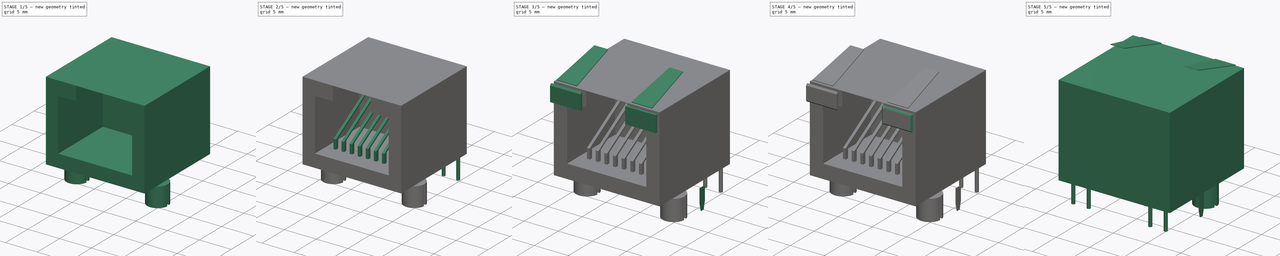
[diagram: build sequence overview — one tinted view per stage of 5, left to right]
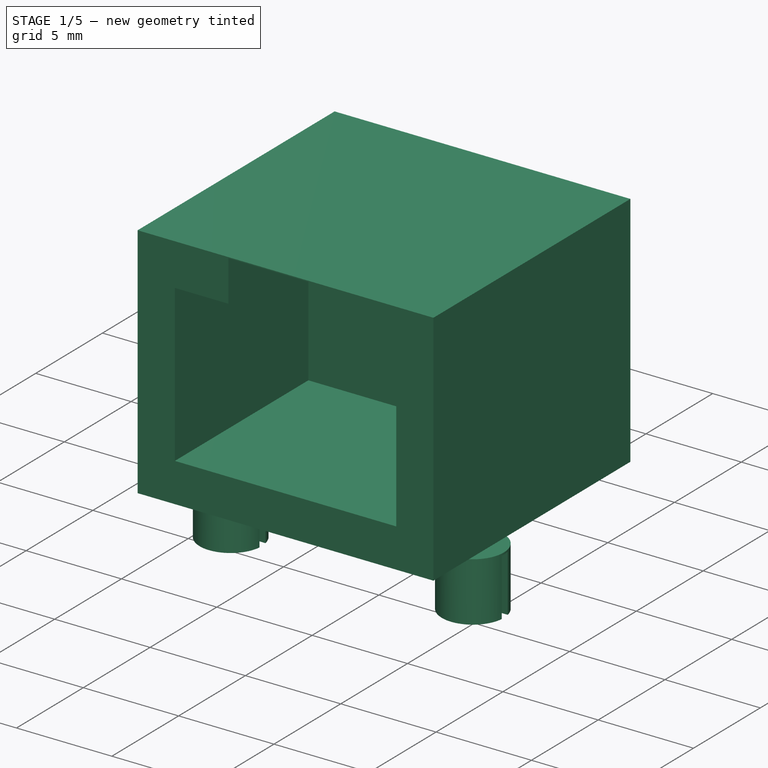
[diagram: stage 1 of 5 — iso view after this stage's code; geometry added in this stage tinted green]
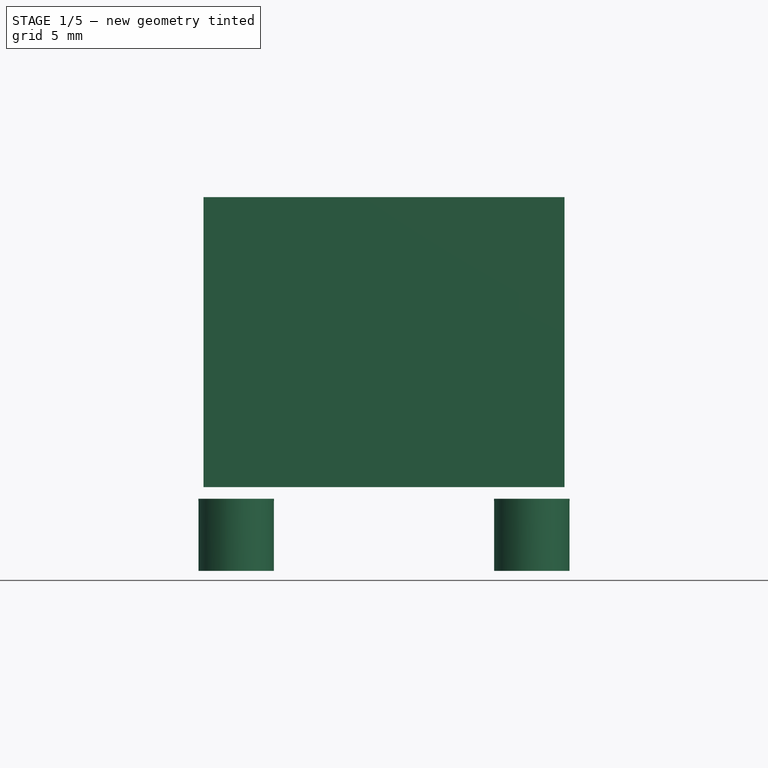
[diagram: stage 1 of 5 — front view after this stage's code; geometry added in this stage tinted green]
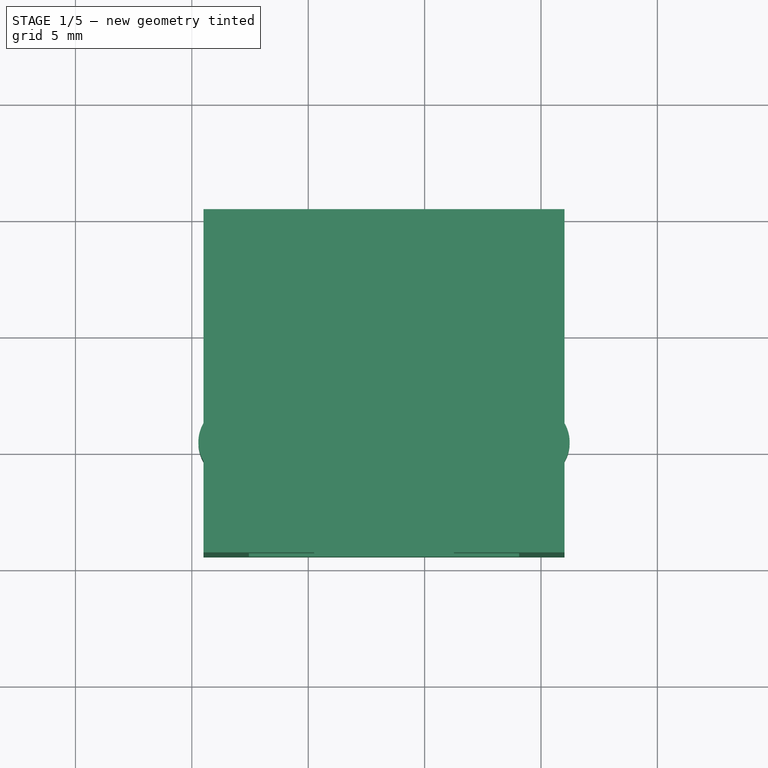
[diagram: stage 1 of 5 — top view after this stage's code; geometry added in this stage tinted green]
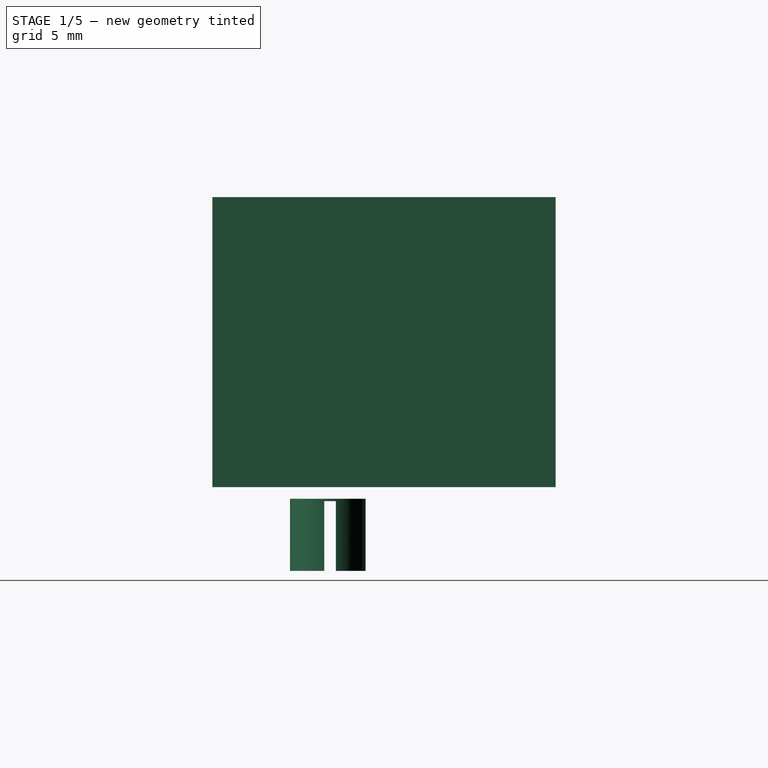
[diagram: stage 1 of 5 — right view after this stage's code; geometry added in this stage tinted green]
FCSTD DOCUMENT  (FreeCAD 0.15R4671 (Git))
Label: RJ45_Amphenol_RJHSE538X
License: All rights reserved
LicenseURL: http://en.wikipedia.org/wiki/All_rights_reserved
objects: Sketcher::SketchObject×12, PartDesign::Pad×9, PartDesign::Chamfer×8, Part::FeaturePython×4, PartDesign::Pocket×3, Part::MultiFuse×1
note: 49 computed .brp shape members not serialized (recipe doc carries the construction recipe); baked Part::Feature solids carry a one-line shape summary decoded from their .brp

FEATURE [Sketcher::SketchObject] Sketch004
  sketch-geometry (2):
    g0: Circle CenterX=1.905 CenterY=5.46 CenterZ=0 NormalX=0 NormalY=0 NormalZ=1 Radius=1.625
    g1: Circle CenterX=14.605 CenterY=5.46 CenterZ=0 NormalX=0 NormalY=0 NormalZ=1 Radius=1.625
  constraints (6):
    c: Radius(g0) = 1.625
    c: DistanceY(g-1,g0) = 5.46
    c: DistanceX(g-2,g0) = 1.905
    c: Radius(g1) = 1.625
    c: DistanceY(g-1,g1) = 5.46
    c: Distance(g0,g1) = 12.7
FEATURE [PartDesign::Pad] Pad003
  Length = 3.1
  Length2 = 100
  Reversed = true
  Sketch = -> Sketch004
  Type = 0
FEATURE [Sketcher::SketchObject] Sketch009
  Placement = pos=(0,0,0.5) rot=(0,0,1;0rad)
  sketch-geometry (4):
    g0: LineSegment StartX=0.5 StartY=0.5 StartZ=0 EndX=16.01 EndY=0.5 EndZ=0
    g1: LineSegment StartX=16.01 StartY=0.5 StartZ=0 EndX=16.01 EndY=15.25 EndZ=0
    g2: LineSegment StartX=16.01 StartY=15.25 StartZ=0 EndX=0.5 EndY=15.25 EndZ=0
    g3: LineSegment StartX=0.5 StartY=15.25 StartZ=0 EndX=0.5 EndY=0.5 EndZ=0
  constraints (12):
    c: Coincident(g0,g1)
    c: Coincident(g1,g2)
    c: Coincident(g2,g3)
    c: Coincident(g3,g0)
    c: Horizontal(g0)
    c: Horizontal(g2)
    c: Vertical(g1)
    c: Vertical(g3)
    c: Distance(g3) = 14.75
    c: DistanceX(g-2,g0) = 0.5
    c: DistanceY(g-1,g0) = 0.5
    c: Distance(g2) = 15.51
FEATURE [PartDesign::Pad] Pad008
  Length = 12.46
  Length2 = 100
  Placement = pos=(0,0,0.5) rot=(0,0,1;0rad)
  Sketch = -> Sketch009
  Type = 0
FEATURE [Sketcher::SketchObject] Sketch010
  Placement = pos=(0,0.5,0.5) rot=(1,0,0;1.5708rad)
  Support = -> Pad008 [Face1]
  sketch-geometry (8):
    g0: LineSegment StartX=2.45 StartY=2.05 StartZ=0 EndX=2.45 EndY=10.25 EndZ=0
    g1: LineSegment StartX=2.45 StartY=10.25 StartZ=0 EndX=5.255 EndY=10.25 EndZ=0
    g2: LineSegment StartX=5.255 StartY=10.25 StartZ=0 EndX=5.255 EndY=12.41 EndZ=0
    g3: LineSegment StartX=5.255 StartY=12.41 StartZ=0 EndX=11.255 EndY=12.41 EndZ=0
    g4: LineSegment StartX=11.255 StartY=12.41 StartZ=0 EndX=11.255 EndY=10.25 EndZ=0
    g5: LineSegment StartX=11.255 StartY=10.25 StartZ=0 EndX=14.06 EndY=10.25 EndZ=0
    g6: LineSegment StartX=14.06 StartY=10.25 StartZ=0 EndX=14.06 EndY=2.05 EndZ=0
    g7: LineSegment StartX=14.06 StartY=2.05 StartZ=0 EndX=2.45 EndY=2.05 EndZ=0
  constraints (25):
    c: Vertical(g0)
    c: Coincident(g0,g1)
    c: Horizontal(g1)
    c: Coincident(g1,g2)
    c: Vertical(g2)
    c: Coincident(g2,g3)
    c: Horizontal(g3)
    c: Coincident(g3,g4)
    c: Coincident(g4,g5)
    c: Horizontal(g5)
    c: Coincident(g5,g6)
    c: Vertical(g6)
    c: Coincident(g6,g7)
    c: Coincident(g7,g0)
    c: Horizontal(g7)
    c: Equal(g1,g5)
    c: Parallel(g4,g2)
    c: Distance(g7) = 11.61
    c: DistanceX(g-2,g0) = 2.45
    c: Distance(g6) = 8.2
    c: Equal(g0,g6)
    c: Equal(g2,g4)
    c: Distance(g2) = 2.16
    c: DistanceY(g-1,g6) = 2.05
    c: Distance(g3) = 6
FEATURE [PartDesign::Pocket] Pocket001
  Length = 10
  Placement = pos=(0,0,0.5) rot=(0,0,1;0rad)
  Sketch = -> Sketch010
  Type = 0
FEATURE [Sketcher::SketchObject] Sketch011
  Placement = pos=(0,0,-3.1) rot=(1,0,0;3.14159rad)
  Support = -> Pad003 [Face3]
  sketch-geometry (4):
    g0: LineSegment StartX=0 StartY=-5.31 StartZ=0 EndX=17 EndY=-5.31 EndZ=0
    g1: LineSegment StartX=17 StartY=-5.31 StartZ=0 EndX=17 EndY=-5.81 EndZ=0
    g2: LineSegment StartX=17 StartY=-5.81 StartZ=0 EndX=0 EndY=-5.81 EndZ=0
    g3: LineSegment StartX=0 StartY=-5.81 StartZ=0 EndX=0 EndY=-5.31 EndZ=0
  constraints (12):
    c: Coincident(g0,g1)
    c: Coincident(g1,g2)
    c: Coincident(g2,g3)
    c: Coincident(g3,g0)
    c: Horizontal(g0)
    c: Horizontal(g2)
    c: Vertical(g1)
    c: Vertical(g3)
    c: PointOnObject(g0,g-2)
    c: Distance(g0) = 17
    c: Distance(g3) = 0.5
    c: DistanceY(g-1,g2) = -5.81
FEATURE [PartDesign::Pocket] Pocket002
  Length = 3
  Sketch = -> Sketch011
  Type = 0
FEATURE [Part::FeaturePython] Array003  # Draft array (typed FeaturePython)
  Angle = 360
  ArrayType = 0
  Axis = (0,0,1)
  Base = -> Pocket002
  Center = (0,0,0)
  Fuse = false
  IntervalAxis = (0,0,0)
  IntervalX = (12.7,0,0)
  IntervalY = (0,1,0)
  IntervalZ = (0,0,0)
  NumberPolar = 1
  NumberX = 2
  NumberY = 1
  NumberZ = 1
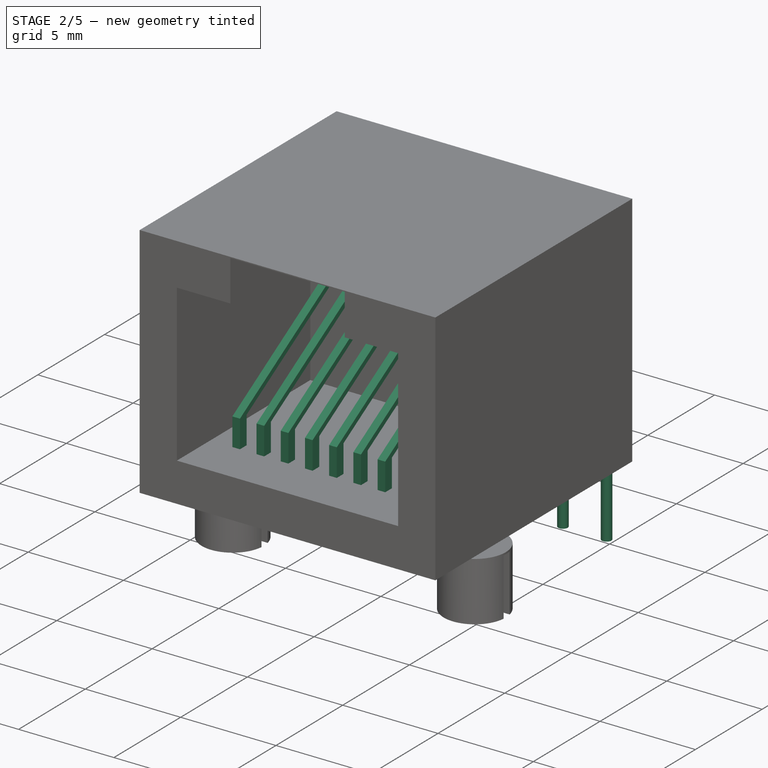
[diagram: stage 2 of 5 — iso view after this stage's code; geometry added in this stage tinted green]
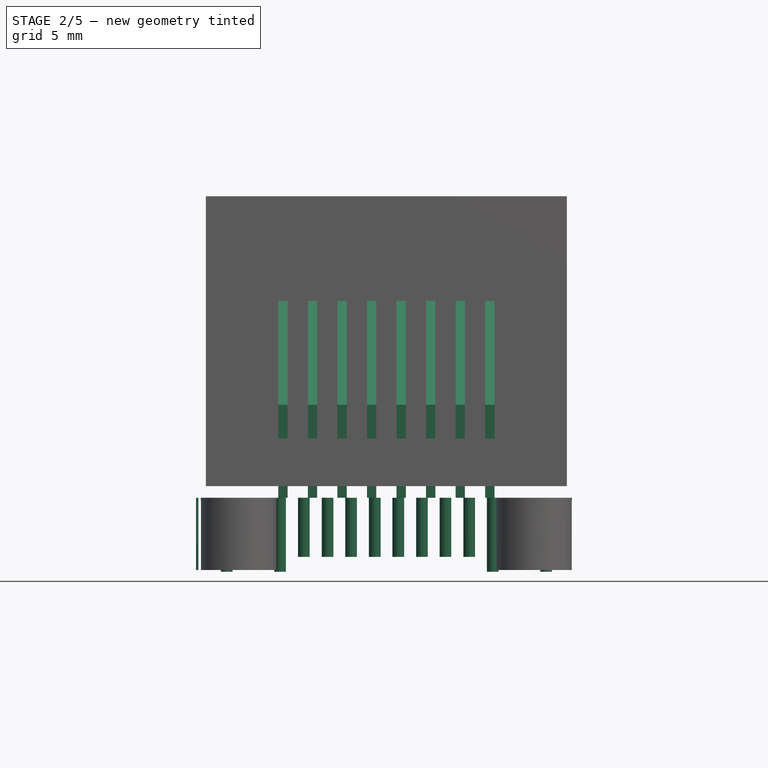
[diagram: stage 2 of 5 — front view after this stage's code; geometry added in this stage tinted green]
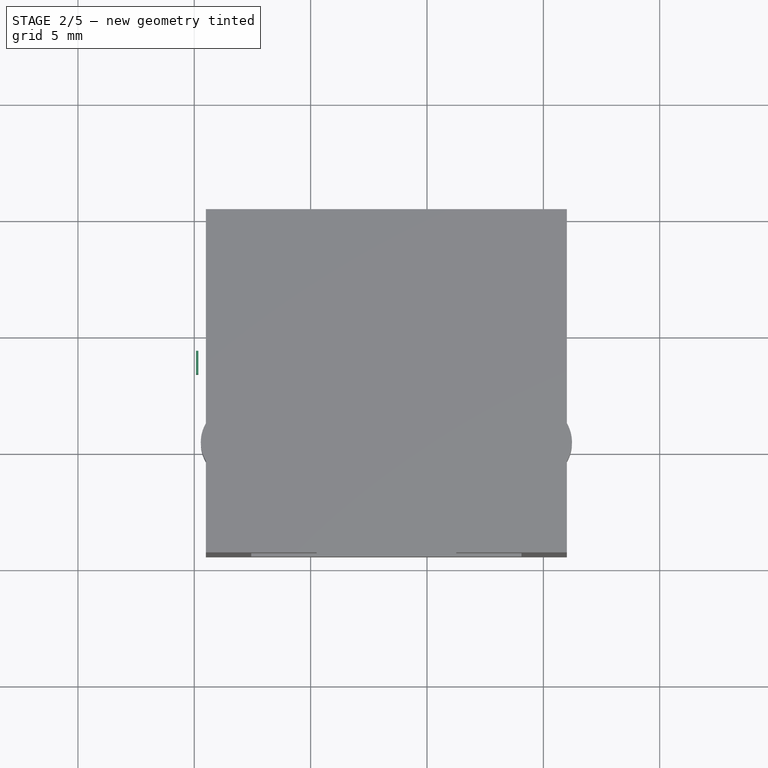
[diagram: stage 2 of 5 — top view after this stage's code; geometry added in this stage tinted green]
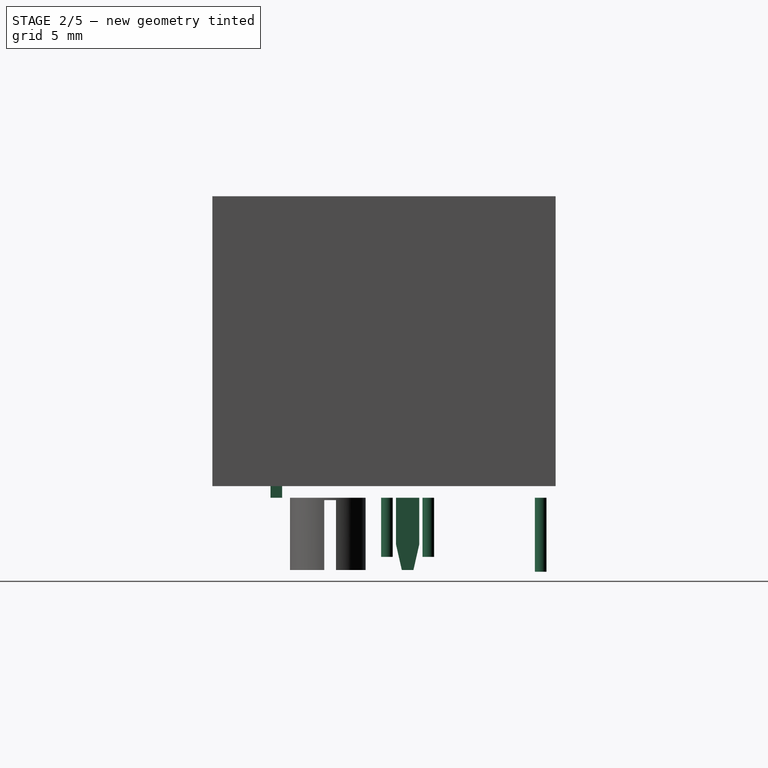
[diagram: stage 2 of 5 — right view after this stage's code; geometry added in this stage tinted green]
FEATURE [Sketcher::SketchObject] Sketch005
  Placement = pos=(0.125,0,0) rot=(0.57735,0.57735,0.57735;2.0944rad)
  sketch-geometry (7):
    g0: LineSegment StartX=8.39 StartY=-2 StartZ=0 EndX=8.64 EndY=-3.1 EndZ=0
    g1: LineSegment StartX=8.64 StartY=-3.1 StartZ=0 EndX=9.14 EndY=-3.1 EndZ=0
    g2: LineSegment StartX=9.14 StartY=-3.1 StartZ=0 EndX=9.39 EndY=-2 EndZ=0
    g3: LineSegment StartX=9.39 StartY=-2 StartZ=0 EndX=9.39 EndY=0 EndZ=0
    g4: LineSegment StartX=9.39 StartY=0 StartZ=0 EndX=8.39 EndY=0 EndZ=0
    g5: LineSegment StartX=8.39 StartY=-2 StartZ=0 EndX=8.39 EndY=0 EndZ=0
    g6: LineSegment [constr] StartX=8.39 StartY=-2 StartZ=0 EndX=8.39 EndY=-7.22902 EndZ=0
  constraints (20):
    c: Coincident(g0,g1)
    c: Horizontal(g1)
    c: Coincident(g1,g2)
    c: Coincident(g2,g3)
    c: PointOnObject(g3,g-1)
    c: Vertical(g3)
    c: Coincident(g4,g3)
    c: Horizontal(g4)
    c: Distance(g4) = 1
    c: Distance(g1) = 0.5
    c: Equal(g0,g2)
    c: Coincident(g5,g0)
    c: Coincident(g5,g4)
    c: Parallel(g5,g3)
    c: Coincident(g6,g0)
    c: Vertical(g6)
    c: Distance(g0,g6) = 0.25
    c: DistanceY(g-1,g1) = -3.1
    c: DistanceY(g-1,g2) = -2
    c: DistanceX(g-2,g4) = 8.39
FEATURE [PartDesign::Pad] Pad004
  Length = 0.1
  Length2 = 100
  Midplane = true
  Placement = pos=(0.125,0,0) rot=(0.57735,0.57735,0.57735;2.0944rad)
  Sketch = -> Sketch005
  Type = 0
FEATURE [Sketcher::SketchObject] Sketch006
  Placement = pos=(3.81,0,0) rot=(0.57735,0.57735,0.57735;2.0944rad)
  sketch-geometry (7):
    g0: LineSegment StartX=3.5 StartY=0 StartZ=0 EndX=3.5 EndY=4.00001 EndZ=0
    g1: LineSegment StartX=3.5 StartY=4.00001 StartZ=0 EndX=13.5 EndY=9.95292 EndZ=0
    g2: LineSegment StartX=13.5 StartY=9.95292 StartZ=0 EndX=13 EndY=9.95292 EndZ=0
    g3: LineSegment StartX=13 StartY=9.95292 StartZ=0 EndX=3 EndY=4 EndZ=0
    g4: LineSegment StartX=3 StartY=4 StartZ=0 EndX=3 EndY=0 EndZ=0
    g5: LineSegment StartX=3 StartY=0 StartZ=0 EndX=3.5 EndY=0 EndZ=0
    g6: LineSegment [constr] StartX=3.5 StartY=4.00001 StartZ=0 EndX=3 EndY=4 EndZ=0
  constraints (19):
    c: PointOnObject(g0,g-1)
    c: Vertical(g0)
    c: Coincident(g0,g1)
    c: Coincident(g1,g2)
    c: Coincident(g2,g3)
    c: Coincident(g3,g4)
    c: PointOnObject(g4,g-1)
    c: Vertical(g4)
    c: Coincident(g4,g5)
    c: Coincident(g5,g0)
    c: Distance(g5) = 0.5
    c: Parallel(g1,g3)
    c: Distance(g2) = 0.5
    c: Coincident(g6,g0)
    c: Coincident(g6,g3)
    c: Distance(g6) = 0.5
    c: Distance(g4) = 4
    c: DistanceX(g-2,g2) = 13
    c: DistanceX(g-2,g3) = 3
FEATURE [PartDesign::Pad] Pad005
  Length = 0.4
  Length2 = 100
  Midplane = true
  Placement = pos=(3.81,0,0) rot=(0.57735,0.57735,0.57735;2.0944rad)
  Sketch = -> Sketch006
  Type = 0
FEATURE [Part::FeaturePython] Array002  # Draft array (typed FeaturePython)
  Angle = 360
  ArrayType = 0
  Axis = (0,0,1)
  Base = -> Pad005
  Center = (0,0,0)
  Fuse = false
  IntervalAxis = (0,0,0)
  IntervalX = (1.27,0,0)
  IntervalY = (0,1,0)
  IntervalZ = (0,0,0)
  NumberPolar = 1
  NumberX = 8
  NumberY = 1
  NumberZ = 1
FEATURE [Sketcher::SketchObject] Sketch007
  sketch-geometry (7):
    g0: LineSegment [constr] StartX=0 StartY=8 StartZ=0 EndX=19.2022 EndY=8 EndZ=0
    g1: LineSegment [constr] StartX=0.0165654 StartY=9.78 StartZ=0 EndX=19.2516 EndY=9.78 EndZ=0
    g2: LineSegment [constr] StartX=0 StartY=14.61 StartZ=0 EndX=18.911 EndY=14.61 EndZ=0
    g3: Circle CenterX=1.395 CenterY=14.61 CenterZ=0 NormalX=0 NormalY=0 NormalZ=1 Radius=0.25
    g4: Circle CenterX=3.685 CenterY=14.61 CenterZ=0 NormalX=0 NormalY=0 NormalZ=1 Radius=0.25
    g5: Circle CenterX=12.825 CenterY=14.61 CenterZ=0 NormalX=0 NormalY=0 NormalZ=1 Radius=0.25
    g6: Circle CenterX=15.115 CenterY=14.61 CenterZ=0 NormalX=0 NormalY=0 NormalZ=1 Radius=0.25
  constraints (20):
    c: PointOnObject(g0,g-2)
    c: Horizontal(g0)
    c: Distance(g-1,g0) = 8
    c: Horizontal(g1)
    c: Distance(g1,g0) = 1.78
    c: PointOnObject(g2,g-2)
    c: Horizontal(g2)
    c: Distance(g2,g1) = 4.83
    c: PointOnObject(g3,g2)
    c: PointOnObject(g4,g2)
    c: PointOnObject(g5,g2)
    c: PointOnObject(g6,g2)
    c: Radius(g3) = 0.25
    c: Radius(g4) = 0.25
    c: Radius(g5) = 0.25
    c: Radius(g6) = 0.25
    c: Distance(g3,g4) = 2.29
    c: Distance(g5,g6) = 2.29
    c: DistanceX(g-2,g3) = 1.395
    c: Distance(g6,g3) = 13.72
FEATURE [Sketcher::SketchObject] Sketch008
  sketch-geometry (10):
    g0: Circle CenterX=5.725 CenterY=8 CenterZ=0 NormalX=0 NormalY=0 NormalZ=1 Radius=0.25
    g1: LineSegment [constr] StartX=0 StartY=8 StartZ=0 EndX=19.2022 EndY=8 EndZ=0
    g2: Circle CenterX=7.755 CenterY=8 CenterZ=0 NormalX=0 NormalY=0 NormalZ=1 Radius=0.25
    g3: Circle CenterX=9.785 CenterY=8 CenterZ=0 NormalX=0 NormalY=0 NormalZ=1 Radius=0.25
    g4: Circle CenterX=11.815 CenterY=8 CenterZ=0 NormalX=0 NormalY=0 NormalZ=1 Radius=0.25
    g5: LineSegment [constr] StartX=0.0165654 StartY=9.78 StartZ=0 EndX=19.2516 EndY=9.78 EndZ=0
    g6: Circle CenterX=4.705 CenterY=9.78 CenterZ=0 NormalX=0 NormalY=0 NormalZ=1 Radius=0.25
    g7: Circle CenterX=6.735 CenterY=9.78 CenterZ=0 NormalX=0 NormalY=0 NormalZ=1 Radius=0.25
    g8: Circle CenterX=8.765 CenterY=9.78 CenterZ=0 NormalX=0 NormalY=0 NormalZ=1 Radius=0.25
    g9: Circle CenterX=10.795 CenterY=9.78 CenterZ=0 NormalX=0 NormalY=0 NormalZ=1 Radius=0.25
  constraints (29):
    c: Radius(g0) = 0.25
    c: PointOnObject(g1,g-2)
    c: Horizontal(g1)
    c: Distance(g-1,g1) = 8
    c: PointOnObject(g0,g1)
    c: DistanceX(g-2,g0) = 5.725
    c: PointOnObject(g2,g1)
    c: PointOnObject(g3,g1)
    c: PointOnObject(g4,g1)
    c: Radius(g2) = 0.25
    c: Radius(g3) = 0.25
    c: Radius(g4) = 0.25
    c: Distance(g0,g2) = 2.03
    c: Distance(g2,g3) = 2.03
    c: Distance(g3,g4) = 2.03
    c: Horizontal(g5)
    c: Distance(g5,g1) = 1.78
    c: PointOnObject(g6,g5)
    c: PointOnObject(g7,g5)
    c: PointOnObject(g8,g5)
    c: PointOnObject(g9,g5)
    c: Radius(g6) = 0.25
    c: Radius(g7) = 0.25
    c: Radius(g8) = 0.25
    c: Radius(g9) = 0.25
    c: Distance(g6,g7) = 2.03
    c: Distance(g7,g8) = 2.03
    c: Distance(g8,g9) = 2.03
    c: DistanceX(g-2,g6) = 4.705
FEATURE [PartDesign::Pad] Pad006
  Length = 2.54
  Length2 = 100
  Reversed = true
  Sketch = -> Sketch008
  Type = 0
FEATURE [PartDesign::Pad] Pad007
  Length = 3.18
  Length2 = 100
  Reversed = true
  Sketch = -> Sketch007
  Type = 0
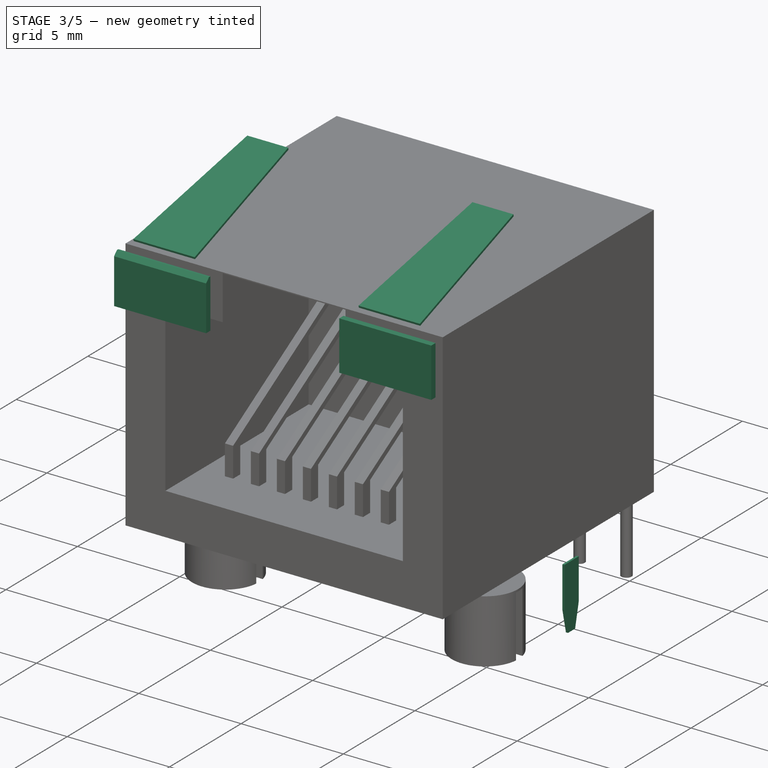
[diagram: stage 3 of 5 — iso view after this stage's code; geometry added in this stage tinted green]
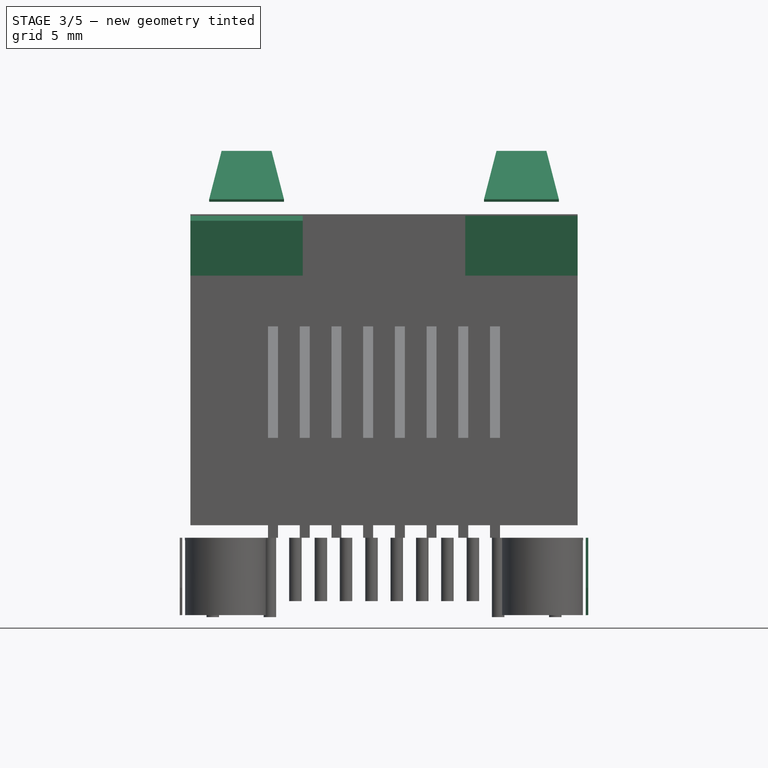
[diagram: stage 3 of 5 — front view after this stage's code; geometry added in this stage tinted green]
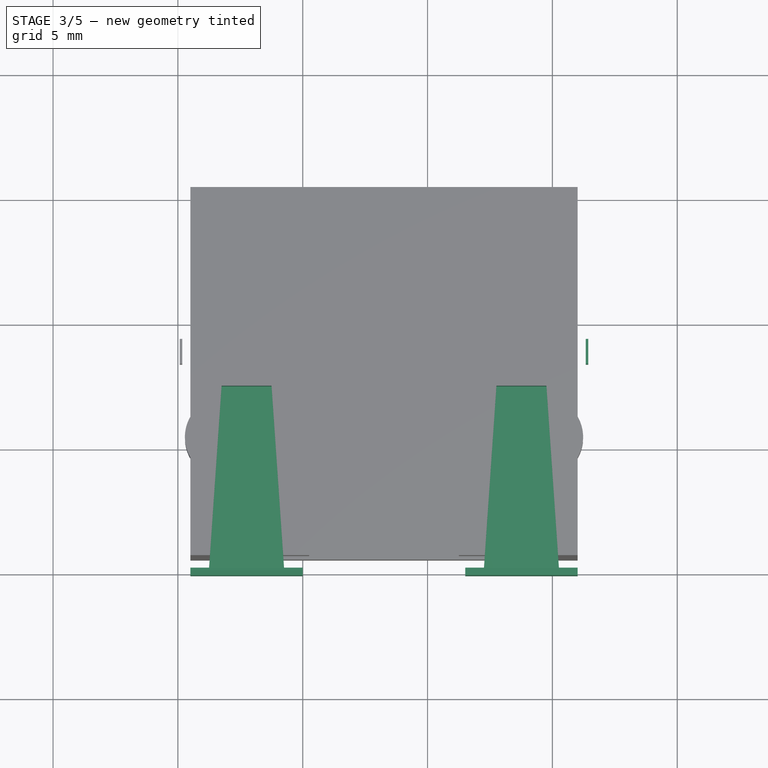
[diagram: stage 3 of 5 — top view after this stage's code; geometry added in this stage tinted green]
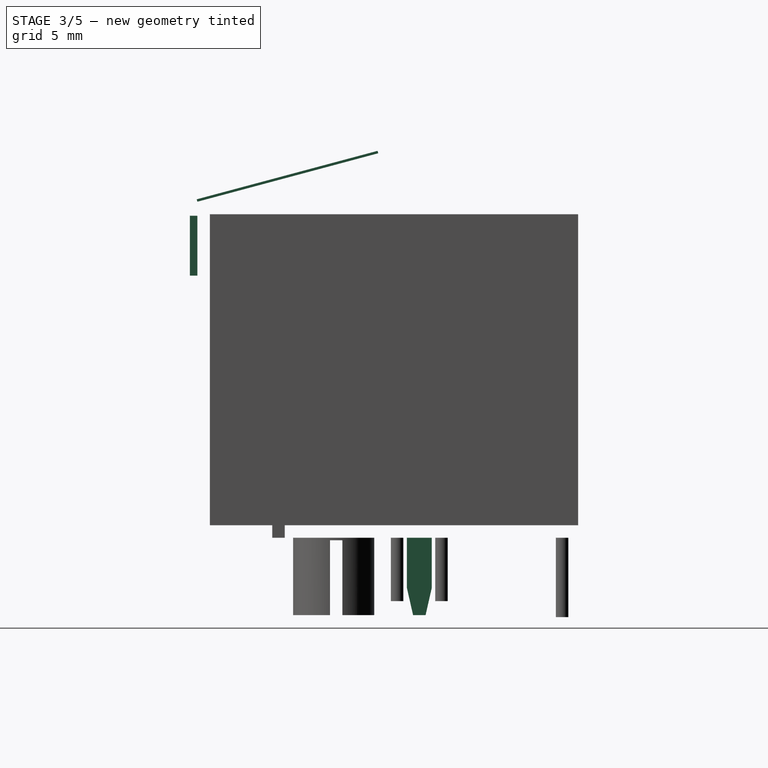
[diagram: stage 3 of 5 — right view after this stage's code; geometry added in this stage tinted green]
FEATURE [Sketcher::SketchObject] Sketch002
  Placement = pos=(0,0,0) rot=(1,0,0;1.5708rad)
  sketch-geometry (8):
    g0: LineSegment StartX=0.5 StartY=12.9 StartZ=0 EndX=5 EndY=12.9 EndZ=0
    g1: LineSegment StartX=5 StartY=12.9 StartZ=0 EndX=5 EndY=10.5 EndZ=0
    g2: LineSegment StartX=5 StartY=10.5 StartZ=0 EndX=0.5 EndY=10.5 EndZ=0
    g3: LineSegment StartX=0.5 StartY=10.5 StartZ=0 EndX=0.5 EndY=12.9 EndZ=0
    g4: LineSegment StartX=11.51 StartY=12.9 StartZ=0 EndX=16.01 EndY=12.9 EndZ=0
    g5: LineSegment StartX=16.01 StartY=12.9 StartZ=0 EndX=16.01 EndY=10.5 EndZ=0
    g6: LineSegment StartX=16.01 StartY=10.5 StartZ=0 EndX=11.51 EndY=10.5 EndZ=0
    g7: LineSegment StartX=11.51 StartY=10.5 StartZ=0 EndX=11.51 EndY=12.9 EndZ=0
  constraints (24):
    c: Coincident(g0,g1)
    c: Coincident(g1,g2)
    c: Coincident(g2,g3)
    c: Coincident(g3,g0)
    c: Horizontal(g0)
    c: Horizontal(g2)
    c: Vertical(g1)
    c: Vertical(g3)
    c: Distance(g1) = 2.4
    c: Distance(g2) = 4.5
    c: DistanceX(g-2,g2) = 0.5
    c: DistanceY(g-1,g2) = 10.5
    c: Coincident(g4,g5)
    c: Coincident(g5,g6)
    c: Coincident(g6,g7)
    c: Coincident(g7,g4)
    c: Horizontal(g4)
    c: Horizontal(g6)
    c: Vertical(g5)
    c: Vertical(g7)
    c: Equal(g7,g1)
    c: Equal(g4,g0)
    c: DistanceY(g-1,g5) = 10.5
    c: DistanceX(g-2,g4) = 16.01
FEATURE [PartDesign::Pad] Pad001
  Length = 0.3
  Length2 = 100
  Placement = pos=(0,0,0) rot=(1,0,0;1.5708rad)
  Sketch = -> Sketch002
  Type = 0
FEATURE [PartDesign::Chamfer] Chamfer
  Base = -> Pad001 [Edge4]
  Placement = pos=(0,0,0) rot=(1,0,0;1.5708rad)
  Size = 0.2
FEATURE [Sketcher::SketchObject] Sketch003
  Placement = pos=(0,0,13.46) rot=(1,0,0;0.261799rad)
  sketch-geometry (4):
    g0: LineSegment StartX=1.25 StartY=0 StartZ=0 EndX=1.75 EndY=7.5 EndZ=0
    g1: LineSegment StartX=1.75 StartY=7.5 StartZ=0 EndX=3.75 EndY=7.5 EndZ=0
    g2: LineSegment StartX=3.75 StartY=7.5 StartZ=0 EndX=4.25 EndY=0 EndZ=0
    g3: LineSegment StartX=4.25 StartY=0 StartZ=0 EndX=1.25 EndY=0 EndZ=0
  constraints (12):
    c: PointOnObject(g0,g-1)
    c: Coincident(g0,g1)
    c: Horizontal(g1)
    c: Coincident(g1,g2)
    c: PointOnObject(g2,g-1)
    c: Coincident(g2,g3)
    c: Coincident(g3,g0)
    c: Distance(g3) = 3
    c: Distance(g1) = 2
    c: Equal(g0,g2)
    c: DistanceY(g-1,g1) = 7.5
    c: Distance(g-1,g0) = 1.25
FEATURE [PartDesign::Pad] Pad002
  Length = 0.1
  Length2 = 100
  Placement = pos=(0,0,13.46) rot=(1,0,0;0.261799rad)
  Sketch = -> Sketch003
  Type = 0
FEATURE [Part::FeaturePython] Array  # Draft array (typed FeaturePython)
  Angle = 360
  ArrayType = 0
  Axis = (0,0,1)
  Base = -> Pad002
  Center = (0,0,0)
  Fuse = false
  IntervalAxis = (0,0,0)
  IntervalX = (11.01,0,0)
  IntervalY = (0,1,0)
  IntervalZ = (0,0,0)
  NumberPolar = 1
  NumberX = 2
  NumberY = 1
  NumberZ = 1
FEATURE [Part::FeaturePython] Array001  # Draft array (typed FeaturePython)
  Angle = 360
  ArrayType = 0
  Axis = (0,0,1)
  Base = -> Pad004
  Center = (0,0,0)
  Fuse = false
  IntervalAxis = (0,0,0)
  IntervalX = (16.26,0,0)
  IntervalY = (0,1,0)
  IntervalZ = (0,0,0)
  NumberPolar = 1
  NumberX = 2
  NumberY = 1
  NumberZ = 1
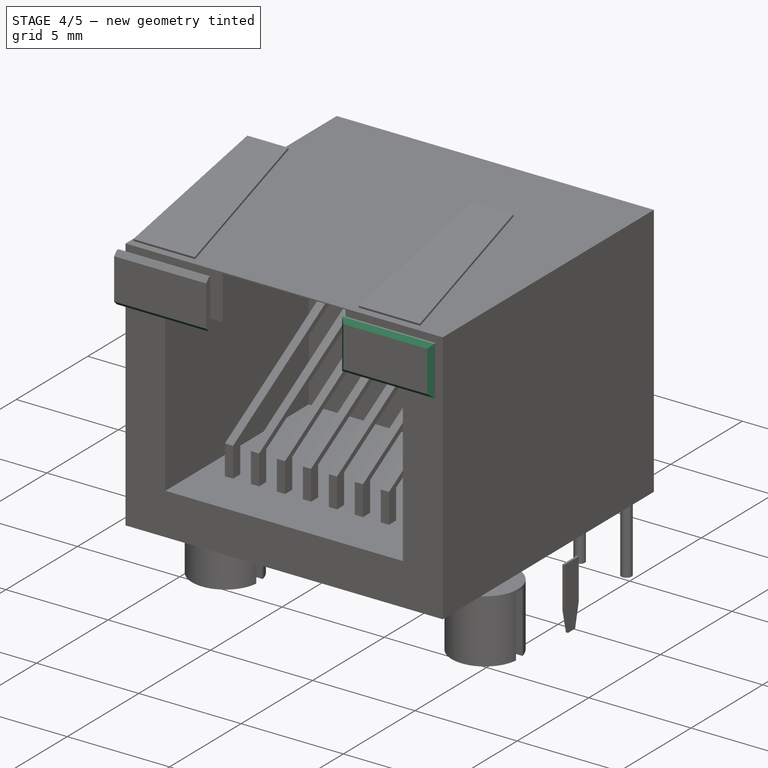
[diagram: stage 4 of 5 — iso view after this stage's code; geometry added in this stage tinted green]
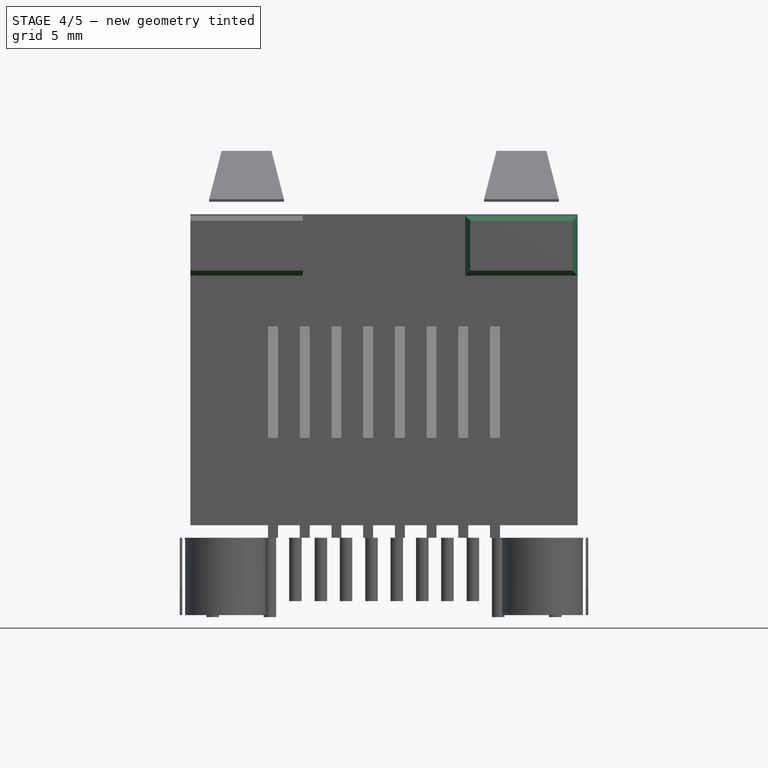
[diagram: stage 4 of 5 — front view after this stage's code; geometry added in this stage tinted green]
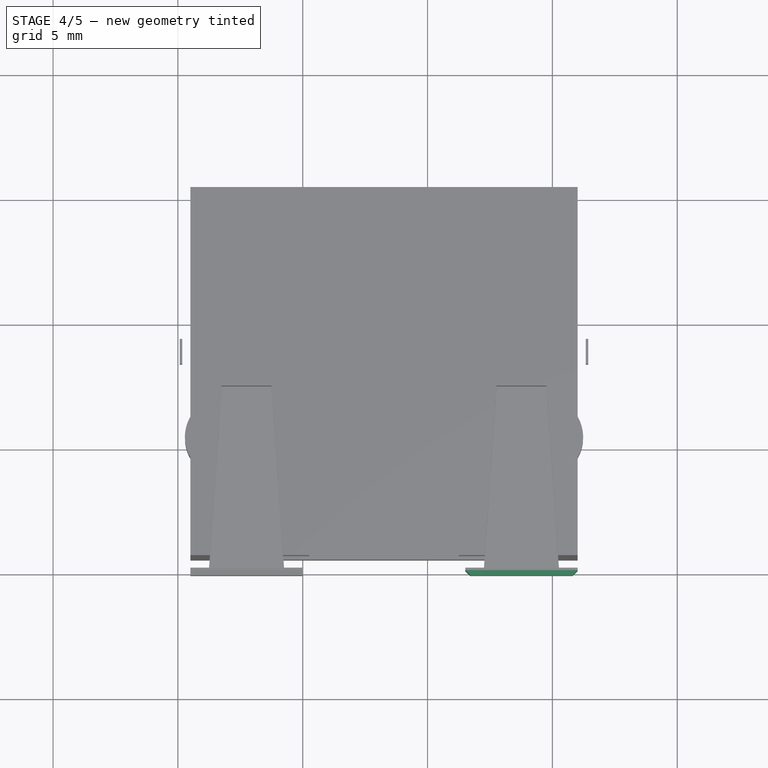
[diagram: stage 4 of 5 — top view after this stage's code; geometry added in this stage tinted green]
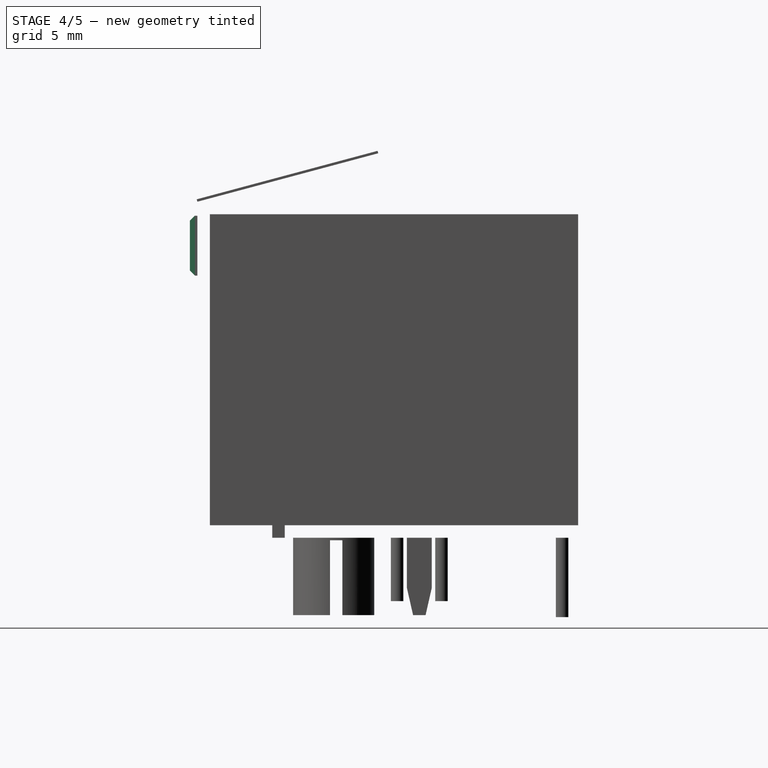
[diagram: stage 4 of 5 — right view after this stage's code; geometry added in this stage tinted green]
FEATURE [PartDesign::Chamfer] Chamfer001
  Base = -> Chamfer [Edge19]
  Placement = pos=(0,0,0) rot=(1,0,0;1.5708rad)
  Size = 0.2
FEATURE [PartDesign::Chamfer] Chamfer002
  Base = -> Chamfer001 [Edge30]
  Placement = pos=(0,0,0) rot=(1,0,0;1.5708rad)
  Size = 0.2
FEATURE [PartDesign::Chamfer] Chamfer003
  Base = -> Chamfer002 [Edge33]
  Placement = pos=(0,0,0) rot=(1,0,0;1.5708rad)
  Size = 0.2
FEATURE [PartDesign::Chamfer] Chamfer004
  Base = -> Chamfer003 [Edge7]
  Placement = pos=(0,0,0) rot=(1,0,0;1.5708rad)
  Size = 0.2
FEATURE [PartDesign::Chamfer] Chamfer005
  Base = -> Chamfer004 [Edge3]
  Placement = pos=(0,0,0) rot=(1,0,0;1.5708rad)
  Size = 0.2
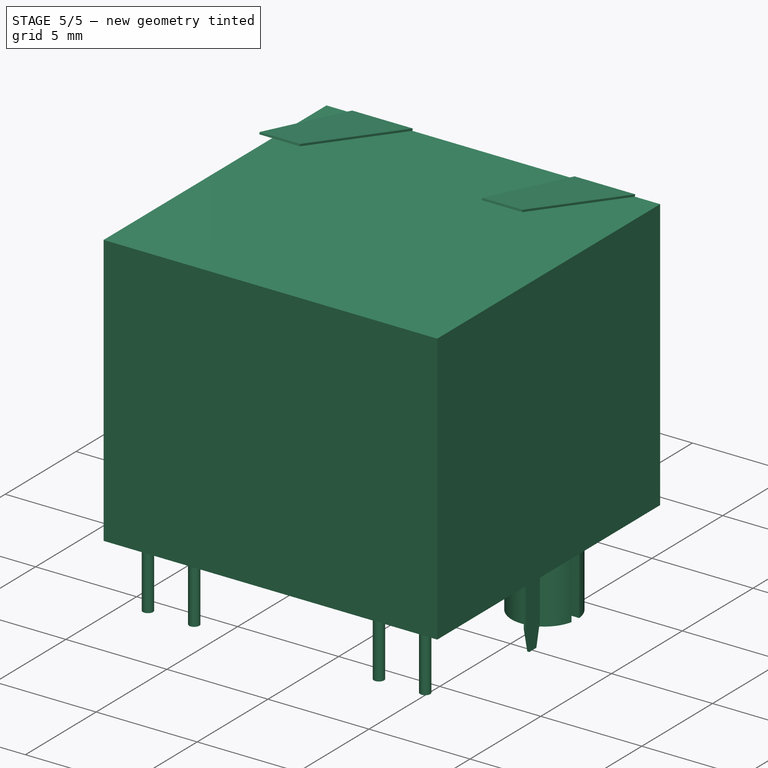
[diagram: stage 5 of 5 — iso view after this stage's code; geometry added in this stage tinted green]
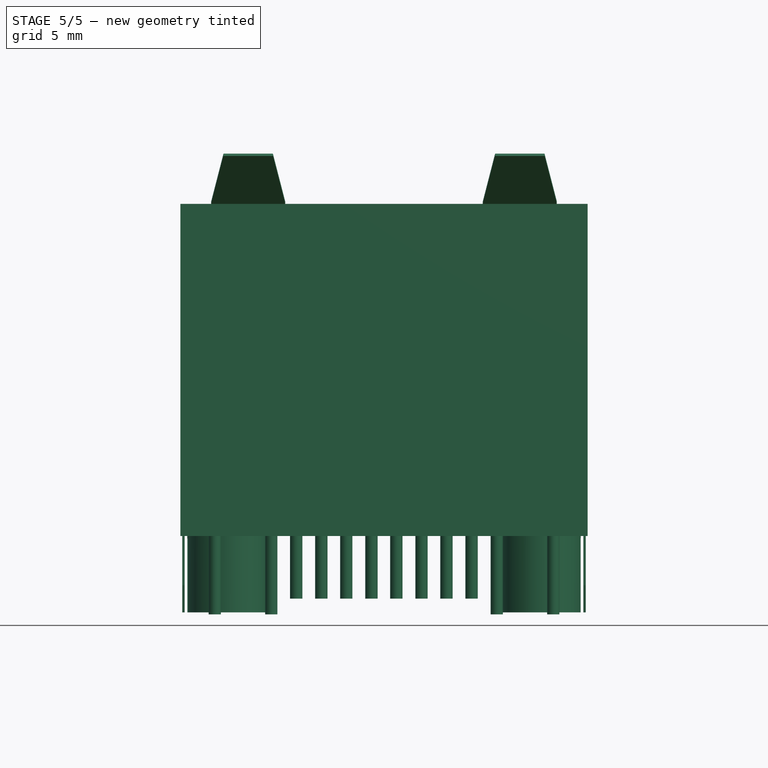
[diagram: stage 5 of 5 — front view after this stage's code; geometry added in this stage tinted green]
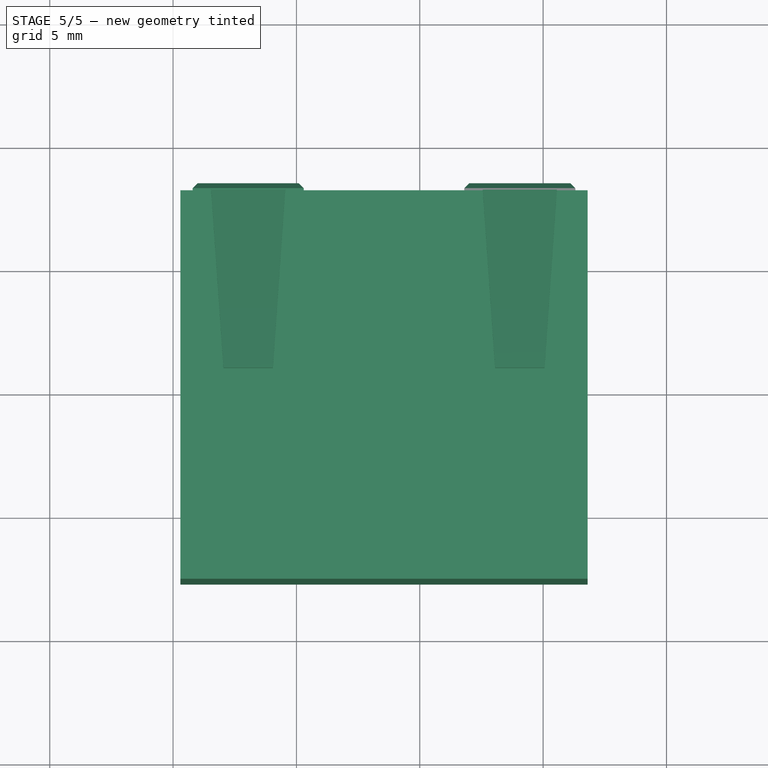
[diagram: stage 5 of 5 — top view after this stage's code; geometry added in this stage tinted green]
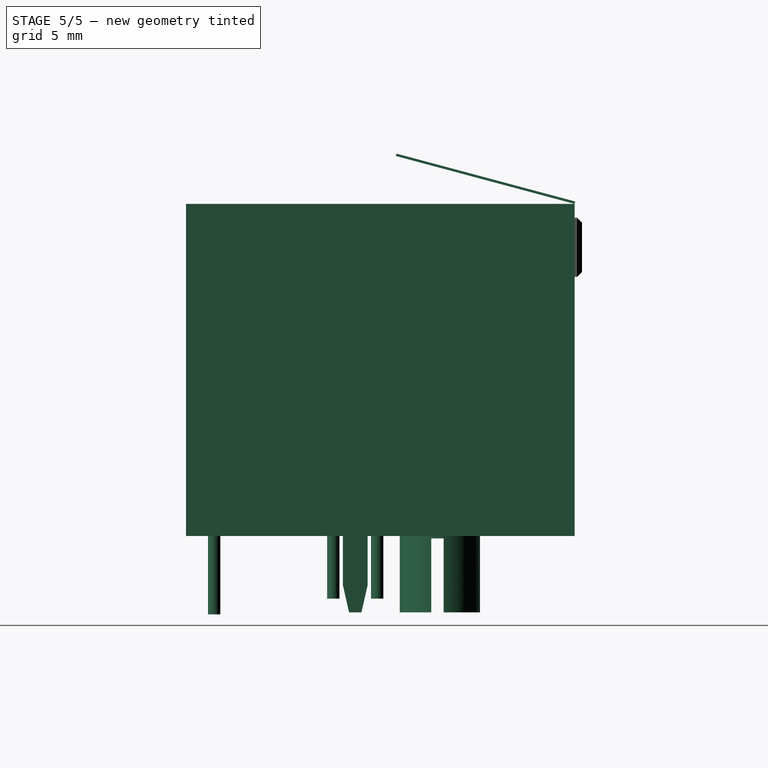
[diagram: stage 5 of 5 — right view after this stage's code; geometry added in this stage tinted green]
FEATURE [Sketcher::SketchObject] Sketch
  sketch-geometry (4):
    g0: LineSegment StartX=0 StartY=0 StartZ=0 EndX=16.51 EndY=0 EndZ=0
    g1: LineSegment StartX=16.51 StartY=0 StartZ=0 EndX=16.51 EndY=15.75 EndZ=0
    g2: LineSegment StartX=16.51 StartY=15.75 StartZ=0 EndX=0 EndY=15.75 EndZ=0
    g3: LineSegment StartX=0 StartY=15.75 StartZ=0 EndX=0 EndY=0 EndZ=0
  constraints (11):
    c: Coincident(g0,g1)
    c: Coincident(g1,g2)
    c: Coincident(g2,g3)
    c: Coincident(g3,g0)
    c: Horizontal(g0)
    c: Horizontal(g2)
    c: Vertical(g1)
    c: Vertical(g3)
    c: Coincident(g0,g-1)
    c: Distance(g2) = 16.51
    c: Distance(g1) = 15.75
FEATURE [PartDesign::Pad] Pad
  Length = 13.46
  Length2 = 100
  Sketch = -> Sketch
  Type = 0
FEATURE [Sketcher::SketchObject] Sketch001
  Placement = pos=(0,0,0) rot=(1,0,0;1.5708rad)
  Support = -> Pad [Face1]
  sketch-geometry (8):
    g0: LineSegment StartX=2.4 StartY=2 StartZ=0 EndX=2.4 EndY=10.3 EndZ=0
    g1: LineSegment StartX=2.4 StartY=10.3 StartZ=0 EndX=5.205 EndY=10.3 EndZ=0
    g2: LineSegment StartX=5.205 StartY=10.3 StartZ=0 EndX=5.205 EndY=13.06 EndZ=0
    g3: LineSegment StartX=5.205 StartY=13.06 StartZ=0 EndX=11.305 EndY=13.06 EndZ=0
    g4: LineSegment StartX=11.305 StartY=13.06 StartZ=0 EndX=11.305 EndY=10.3 EndZ=0
    g5: LineSegment StartX=11.305 StartY=10.3 StartZ=0 EndX=14.11 EndY=10.3 EndZ=0
    g6: LineSegment StartX=14.11 StartY=10.3 StartZ=0 EndX=14.11 EndY=2 EndZ=0
    g7: LineSegment StartX=14.11 StartY=2 StartZ=0 EndX=2.4 EndY=2 EndZ=0
  constraints (25):
    c: Vertical(g0)
    c: Coincident(g0,g1)
    c: Horizontal(g1)
    c: Coincident(g1,g2)
    c: Vertical(g2)
    c: Coincident(g2,g3)
    c: Horizontal(g3)
    c: Coincident(g3,g4)
    c: Coincident(g4,g5)
    c: Horizontal(g5)
    c: Coincident(g5,g6)
    c: Vertical(g6)
    c: Coincident(g6,g7)
    c: Coincident(g7,g0)
    c: Horizontal(g7)
    c: Equal(g1,g5)
    c: Parallel(g4,g2)
    c: Distance(g7) = 11.71
    c: DistanceX(g-2,g0) = 2.4
    c: Distance(g6) = 8.3
    c: Equal(g0,g6)
    c: Equal(g2,g4)
    c: Distance(g2) = 2.76
    c: DistanceY(g-1,g6) = 2
    c: Distance(g3) = 6.1
FEATURE [PartDesign::Pocket] Pocket
  Length = 13
  Sketch = -> Sketch001
  Type = 0
FEATURE [PartDesign::Chamfer] Chamfer006
  Base = -> Chamfer005 [Edge27]
  Placement = pos=(0,0,0) rot=(1,0,0;1.5708rad)
  Size = 0.2
FEATURE [PartDesign::Chamfer] Chamfer007
  Base = -> Chamfer006 [Edge3]
  Placement = pos=(0,0,0) rot=(1,0,0;1.5708rad)
  Size = 0.2
FEATURE [Part::MultiFuse] Fusion  label="RJ45_Amphenol_RJHSE538X"
  Placement = pos=(11.805,8,0) rot=(0,0,1;3.14159rad)
  Shapes = -> [Array,Array003,Pocket001,Pad007,Pad006,Array002,Array001,Chamfer007,Pocket]
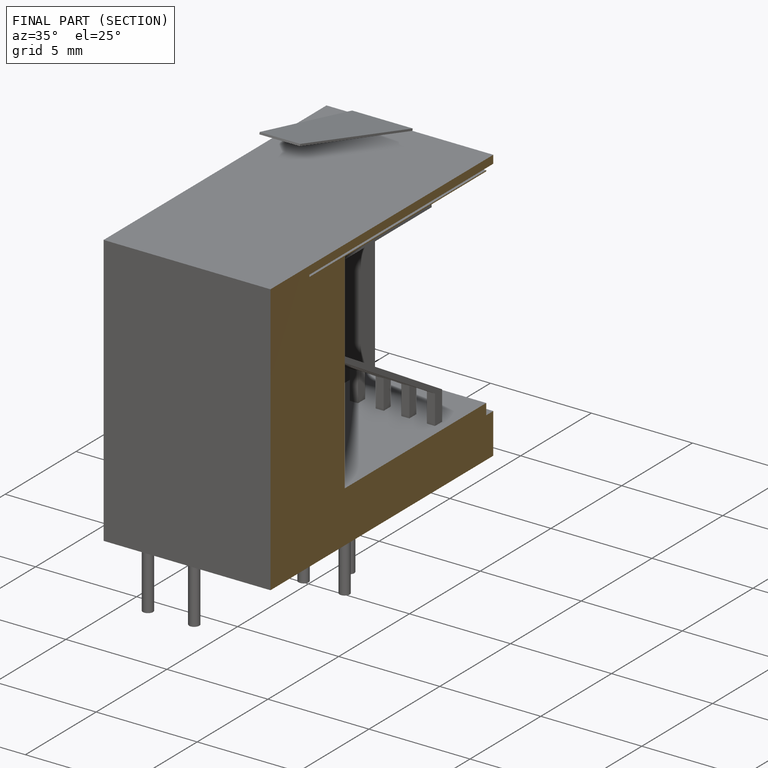
[diagram: finished part — half-section view (interior)]
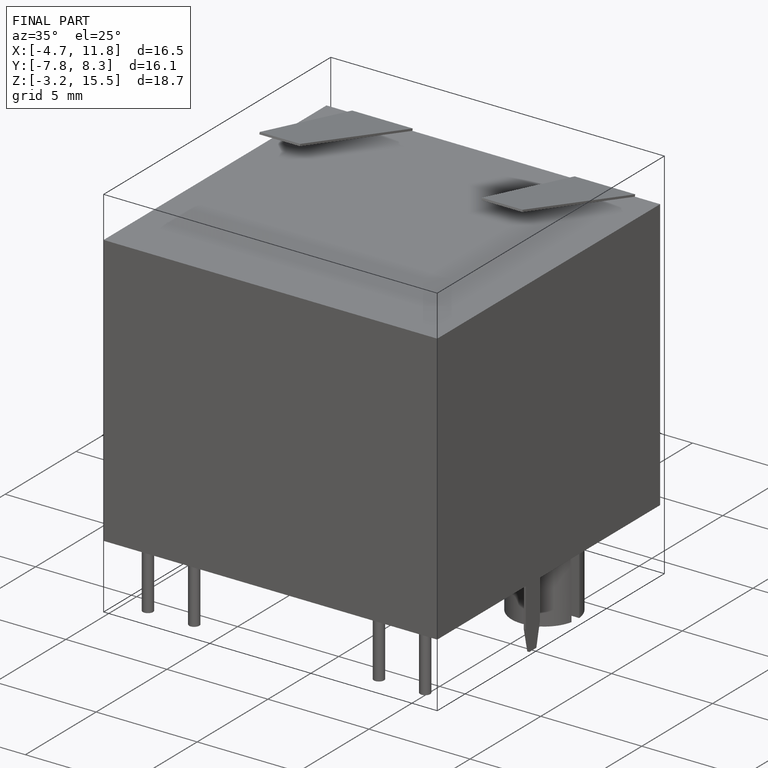
[diagram: finished part — iso view with bounding-box wireframe]
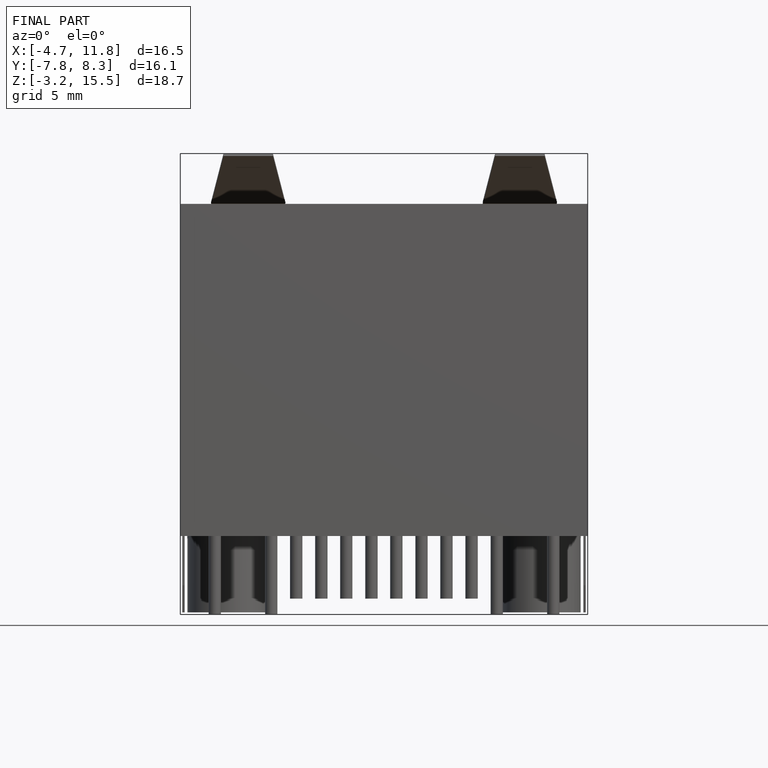
[diagram: finished part — front view with bounding-box wireframe]
